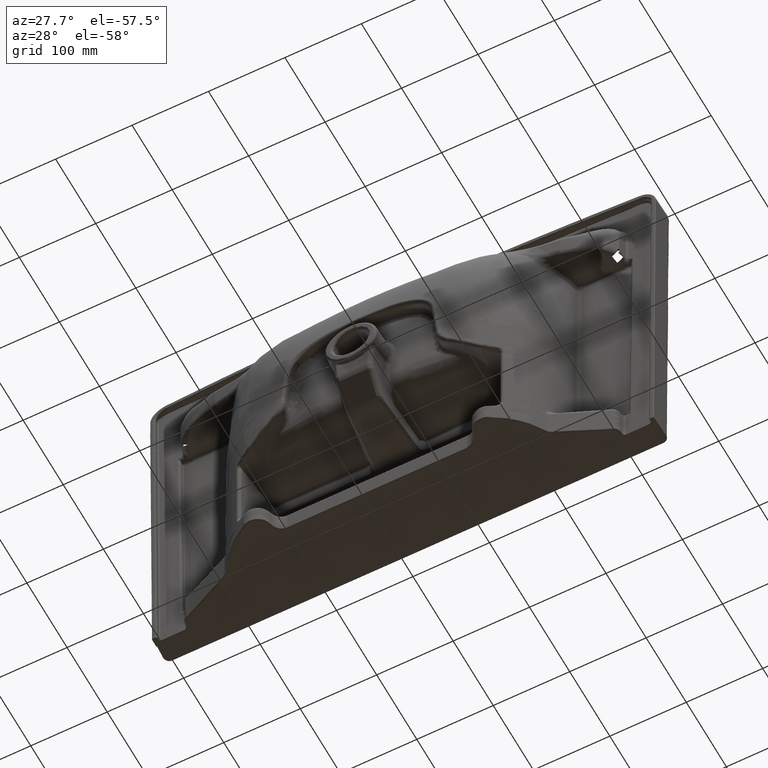
[diagram: clean part render]
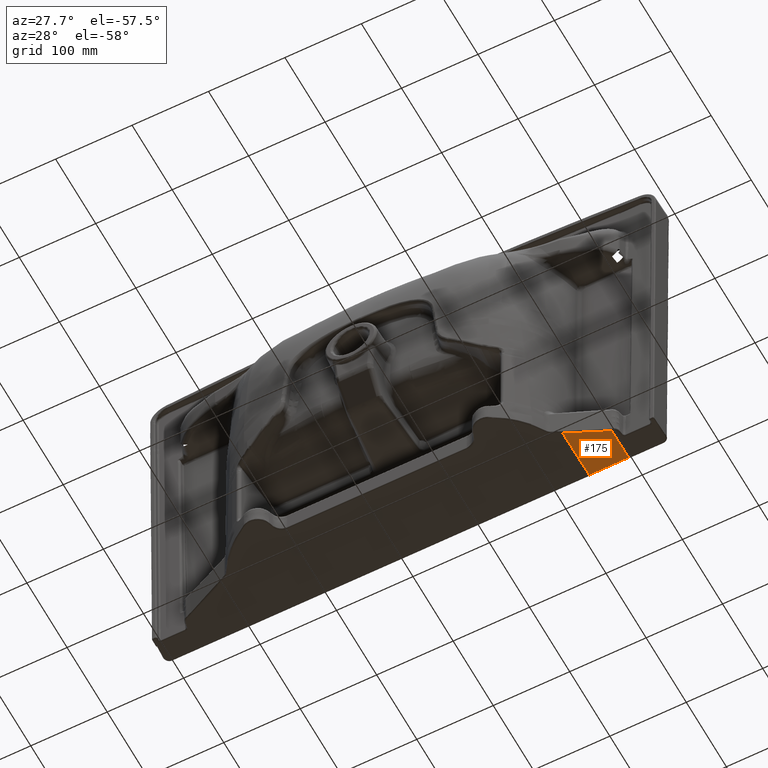
[diagram: same view with one face highlighted and labeled with its STEP entity id]
A machine part, auxiliary view. The second image highlights one B-rep face of the part: STEP entity #175.
In plain terms, the highlighted planar face has unit normal (0, 0.0332, -0.9995).
Its self-contained STEP definition (entity closure, byte-faithful):
#175=ADVANCED_FACE('',(#1781),#22928,.T.);
#1781=FACE_OUTER_BOUND('',#3387,.T.);
#3387=EDGE_LOOP('',(#5554,#5555,#5556,#5557,#5558));
#5554=ORIENTED_EDGE('',*,*,#12685,.F.);
#5555=ORIENTED_EDGE('',*,*,#12689,.F.);
#5556=ORIENTED_EDGE('',*,*,#12772,.F.);
#5557=ORIENTED_EDGE('',*,*,#12634,.T.);
#5558=ORIENTED_EDGE('',*,*,#12629,.F.);
#12629=EDGE_CURVE('',#20076,#20077,#19419,.T.);
#12634=EDGE_CURVE('',#20078,#20077,#16259,.T.);
#12685=EDGE_CURVE('',#20119,#20076,#16309,.T.);
#12689=EDGE_CURVE('',#20122,#20119,#16313,.T.);
#12772=EDGE_CURVE('',#20078,#20122,#16392,.T.);
#16259=B_SPLINE_CURVE_WITH_KNOTS('',3,(#106758,#106759,#106760,#106761),
 .UNSPECIFIED.,.F.,.F.,(4,4),(-1.,0.),.UNSPECIFIED.);
#16309=B_SPLINE_CURVE_WITH_KNOTS('',3,(#107025,#107026,#107027,#107028),
 .UNSPECIFIED.,.F.,.F.,(4,4),(0.,1.),.UNSPECIFIED.);
#16313=B_SPLINE_CURVE_WITH_KNOTS('',3,(#107043,#107044,#107045,#107046),
 .UNSPECIFIED.,.F.,.F.,(4,4),(-1.,0.),.UNSPECIFIED.);
#16392=B_SPLINE_CURVE_WITH_KNOTS('',3,(#107429,#107430,#107431,#107432),
 .UNSPECIFIED.,.F.,.F.,(4,4),(-1.,0.),.UNSPECIFIED.);
#19419=(
BOUNDED_CURVE()
B_SPLINE_CURVE(3,(#106739,#106740,#106741,#106742),.UNSPECIFIED.,.F.,.F.)
B_SPLINE_CURVE_WITH_KNOTS((4,4),(0.,1.),.UNSPECIFIED.)
CURVE()
GEOMETRIC_REPRESENTATION_ITEM()
RATIONAL_B_SPLINE_CURVE((1.,1.,1.,1.))
REPRESENTATION_ITEM('')
);
#20076=VERTEX_POINT('',#103193);
#20077=VERTEX_POINT('',#103194);
#20078=VERTEX_POINT('',#103195);
#20119=VERTEX_POINT('',#103236);
#20122=VERTEX_POINT('',#103239);
#22928=PLANE('',#23675);
#23675=AXIS2_PLACEMENT_3D('',#37163,#23947,$);
#23947=DIRECTION('',(2.04898068715997E-16,0.0331551783885233,-0.999450215941757));
#37163=CARTESIAN_POINT('',(-907.819177660163,-108.514173622783,-252.896194505709));
#103193=CARTESIAN_POINT('',(-907.819177660163,-19.0692104503836,-249.928999479251));
#103194=CARTESIAN_POINT('',(-959.275651141135,-19.0692104504069,-249.928999479251));
#103195=CARTESIAN_POINT('',(-959.275651141135,-85.6360641702062,-252.137249449724));
#103236=CARTESIAN_POINT('',(-907.819177660163,-61.8936391552825,-251.349632093512));
#103239=CARTESIAN_POINT('',(-913.841114578838,-64.4568755255843,-251.434663401478));
#106739=CARTESIAN_POINT('',(-907.819177660163,-19.0692104503836,-249.928999479251));
#106740=CARTESIAN_POINT('',(-924.97134366594,-19.0692104503056,-249.92899947925));
#106741=CARTESIAN_POINT('',(-942.123497403537,-19.0692104504173,-249.928999479251));
#106742=CARTESIAN_POINT('',(-959.275651141135,-19.0692104504069,-249.928999479251));
#106758=CARTESIAN_POINT('',(-959.275651141135,-85.6360641702062,-252.137249449724));
#106759=CARTESIAN_POINT('',(-959.275651141135,-63.447112930273,-251.401166126233));
#106760=CARTESIAN_POINT('',(-959.275651141135,-41.25816169034,-250.665082802742));
#106761=CARTESIAN_POINT('',(-959.275651141135,-19.0692104504069,-249.928999479251));
#107025=CARTESIAN_POINT('',(-907.819177660163,-61.8936391552825,-251.349632093512));
#107026=CARTESIAN_POINT('',(-907.819177660163,-47.6188295869827,-250.876087888758));
#107027=CARTESIAN_POINT('',(-907.819177660163,-33.3440200186833,-250.402543684004));
#107028=CARTESIAN_POINT('',(-907.819177660163,-19.0692104503836,-249.928999479251));
#107043=CARTESIAN_POINT('',(-913.841114578838,-64.4568755255843,-251.434663401478));
#107044=CARTESIAN_POINT('',(-911.862692665278,-63.5346394009019,-251.404069678307));
#107045=CARTESIAN_POINT('',(-909.855380359052,-62.680227277468,-251.375725908985));
#107046=CARTESIAN_POINT('',(-907.819177660163,-61.8936391552825,-251.349632093512));
#107429=CARTESIAN_POINT('',(-959.275651141135,-85.6360641702062,-252.137249449724));
#107430=CARTESIAN_POINT('',(-944.13080562037,-78.5763346219989,-251.903054100309));
#107431=CARTESIAN_POINT('',(-928.985960099604,-71.5166050737916,-251.668858750894));
#107432=CARTESIAN_POINT('',(-913.841114578838,-64.4568755255843,-251.434663401478));